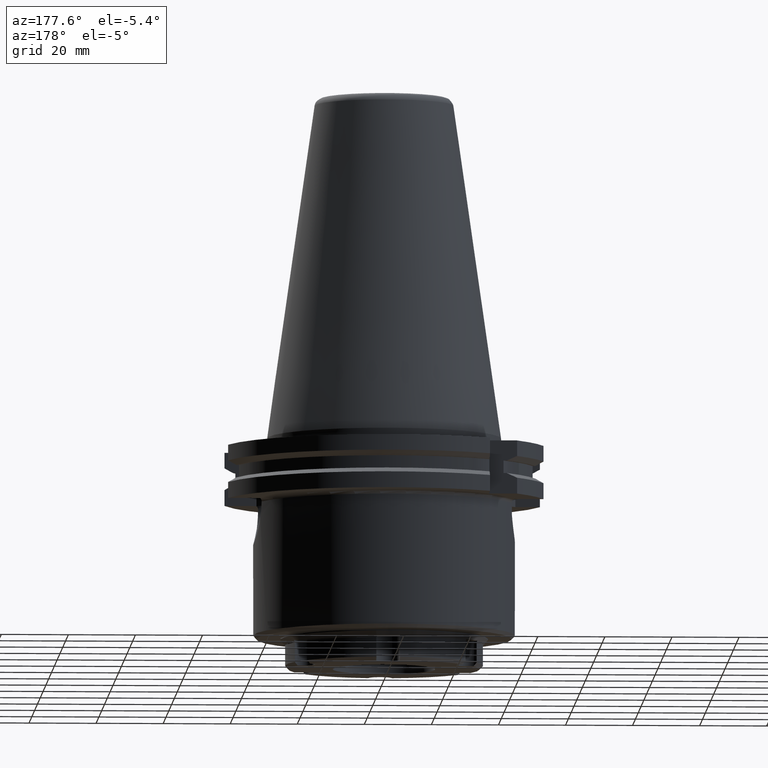
[diagram: clean part render]
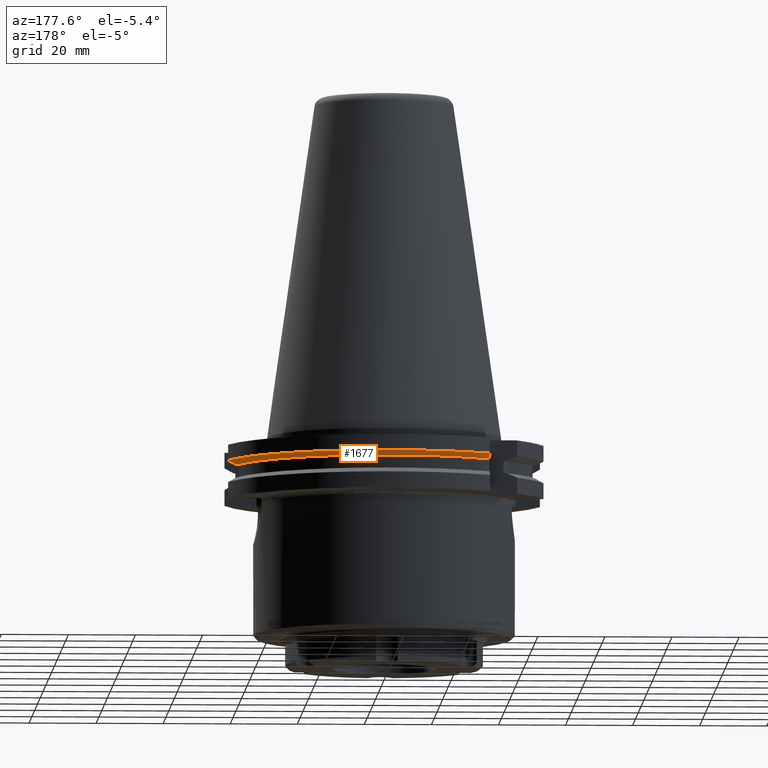
[diagram: same view with one face highlighted and labeled with its STEP entity id]
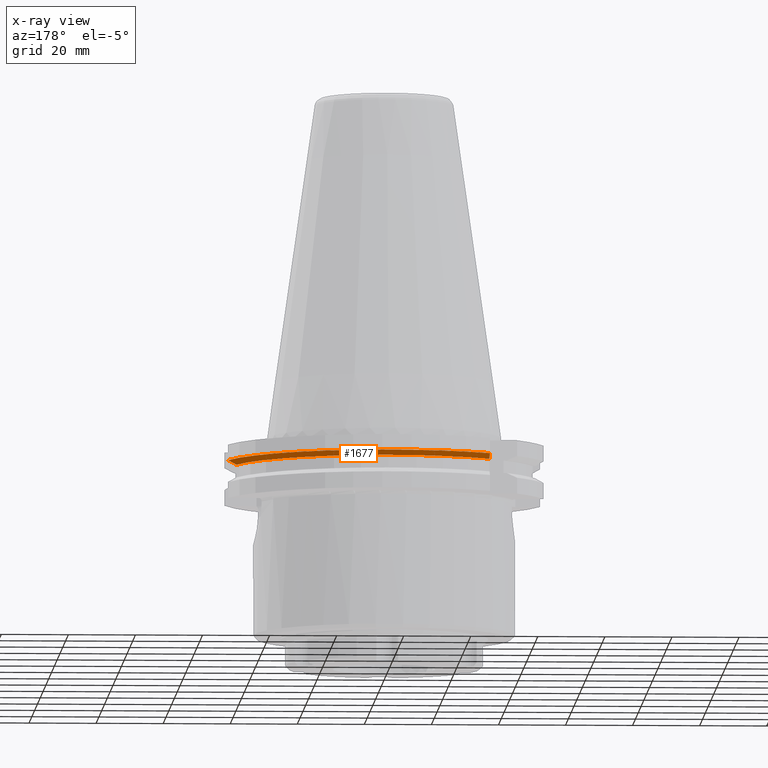
[diagram: x-ray of the same camera — body ghosted, the highlighted face saturated]
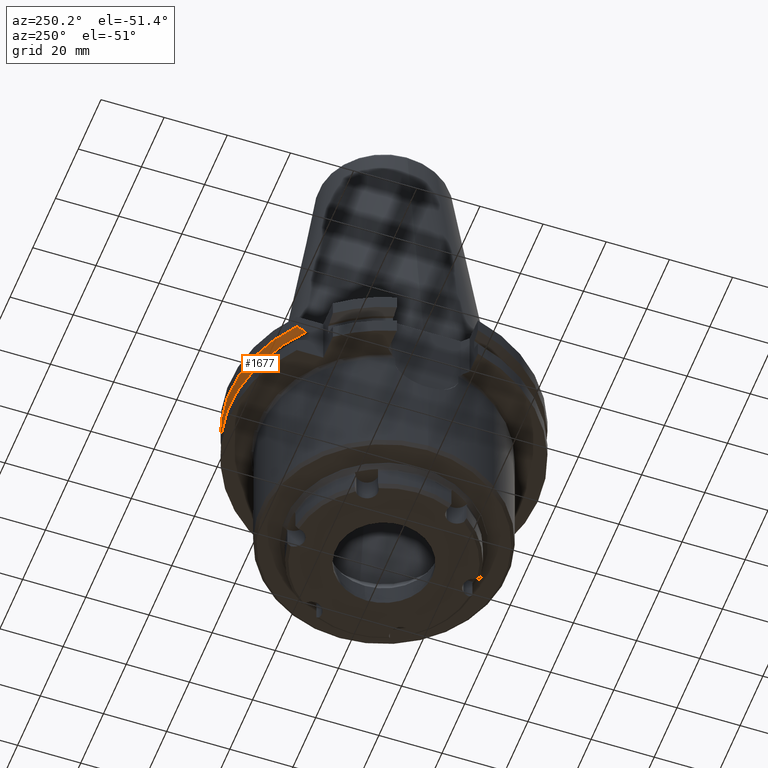
[diagram: same view with one face highlighted and labeled with its STEP entity id]
A machine part, auxiliary view. The second image highlights one B-rep face of the part: STEP entity #1677.
The next image is the same camera in x-ray: the body ghosted, the highlighted face saturated — about 0% of this face is hidden behind the body in this view.
A second angle (auxiliary view) of the same face is appended — the face is thin or edge-on in the first view.
In plain terms, the highlighted conical surface has half-angle 60 deg.
Its self-contained STEP definition (entity closure, byte-faithful):
#347=CIRCLE('',#1837,48.75);
#348=CIRCLE('',#1838,46.3747448887957);
#623=ORIENTED_EDGE('',*,*,#1012,.F.);
#624=ORIENTED_EDGE('',*,*,#1013,.T.);
#625=ORIENTED_EDGE('',*,*,#1014,.T.);
#626=ORIENTED_EDGE('',*,*,#1015,.F.);
#1012=EDGE_CURVE('',#1222,#1223,#1352,.T.);
#1013=EDGE_CURVE('',#1222,#1224,#347,.T.);
#1014=EDGE_CURVE('',#1224,#1225,#1353,.T.);
#1015=EDGE_CURVE('',#1223,#1225,#348,.T.);
#1222=VERTEX_POINT('',#2769);
#1223=VERTEX_POINT('',#2770);
#1224=VERTEX_POINT('',#2772);
#1225=VERTEX_POINT('',#2777);
#1352=B_SPLINE_CURVE_WITH_KNOTS('',3,(#2765,#2766,#2767,#2768),
 .UNSPECIFIED.,.F.,.F.,(4,4),(0.0324738484753094,0.0358272613995686),
 .UNSPECIFIED.);
#1353=B_SPLINE_CURVE_WITH_KNOTS('',3,(#2773,#2774,#2775,#2776),
 .UNSPECIFIED.,.F.,.F.,(4,4),(0.0206077587212824,0.0234303424313697),
 .UNSPECIFIED.);
#1427=EDGE_LOOP('',(#623,#624,#625,#626));
#1544=FACE_BOUND('',#1427,.T.);
#1620=CONICAL_SURFACE('',#1836,46.3747448887957,1.0471975511966);
#1677=ADVANCED_FACE('',(#1544),#1620,.T.);
#1836=AXIS2_PLACEMENT_3D('',#2764,#2154,#2155);
#1837=AXIS2_PLACEMENT_3D('',#2771,#2156,#2157);
#1838=AXIS2_PLACEMENT_3D('',#2778,#2158,#2159);
#2154=DIRECTION('',(0.,-2.22044604925031E-16,1.));
#2155=DIRECTION('',(1.,0.,0.));
#2156=DIRECTION('',(0.,2.22044604925031E-16,-1.));
#2157=DIRECTION('',(-1.,0.,0.));
#2158=DIRECTION('',(0.,2.22044604925031E-16,-1.));
#2159=DIRECTION('',(-1.,0.,0.));
#2764=CARTESIAN_POINT('',(0.,2.04808590390653E-15,-9.22375891365622));
#2765=CARTESIAN_POINT('',(-30.,38.4260653723485,-7.85240473580834));
#2766=CARTESIAN_POINT('',(-30.,37.4080776005128,-8.31567372630064));
#2767=CARTESIAN_POINT('',(-30.,36.3870332268759,-8.77337494776694));
#2768=CARTESIAN_POINT('',(-30.,35.3640631644736,-9.22375891365621));
#2769=CARTESIAN_POINT('',(-30.,38.4260653723485,-7.85240473580834));
#2770=CARTESIAN_POINT('',(-30.,35.3640631644736,-9.22375891365621));
#2771=CARTESIAN_POINT('',(0.,1.74358410727401E-15,-7.85240473580835));
#2772=CARTESIAN_POINT('',(47.025950282796,12.85,-7.85240473580835));
#2773=CARTESIAN_POINT('',(47.025950282796,12.85,-7.85240473580834));
#2774=CARTESIAN_POINT('',(46.2039634008729,12.85,-8.31019570346604));
#2775=CARTESIAN_POINT('',(45.3816279977281,12.85,-8.76734906693906));
#2776=CARTESIAN_POINT('',(44.5588875927225,12.85,-9.22375891365622));
#2777=CARTESIAN_POINT('',(44.5588875927225,12.85,-9.22375891365621));
#2778=CARTESIAN_POINT('',(0.,2.04808590390653E-15,-9.22375891365622));